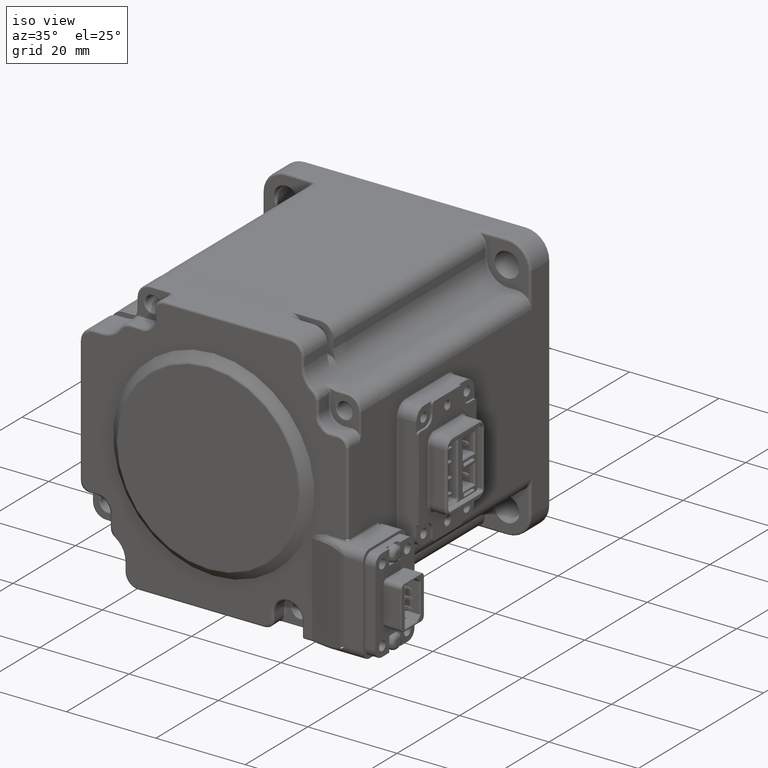
[diagram: clean part render]
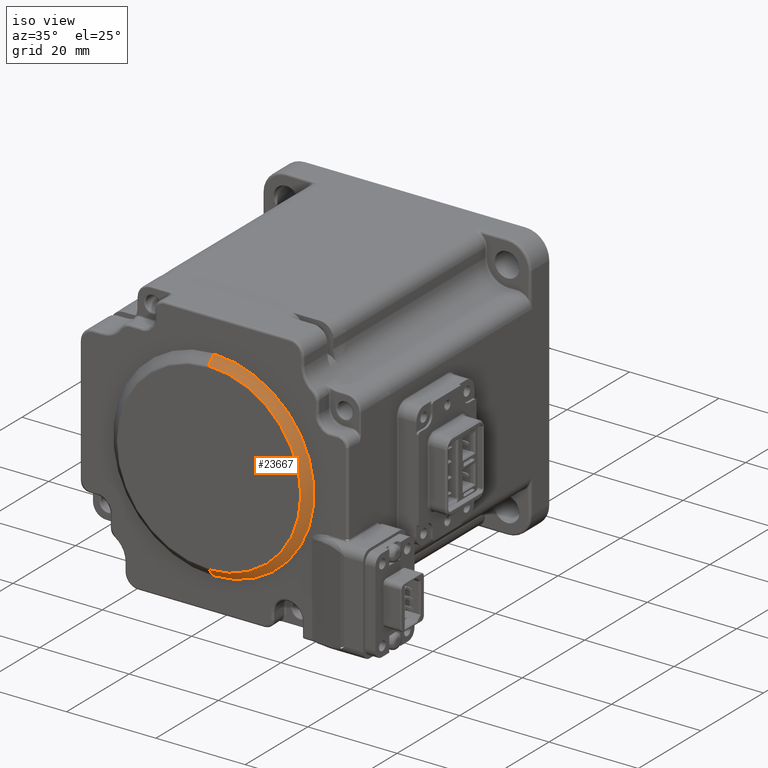
[diagram: same view with one face highlighted and labeled with its STEP entity id]
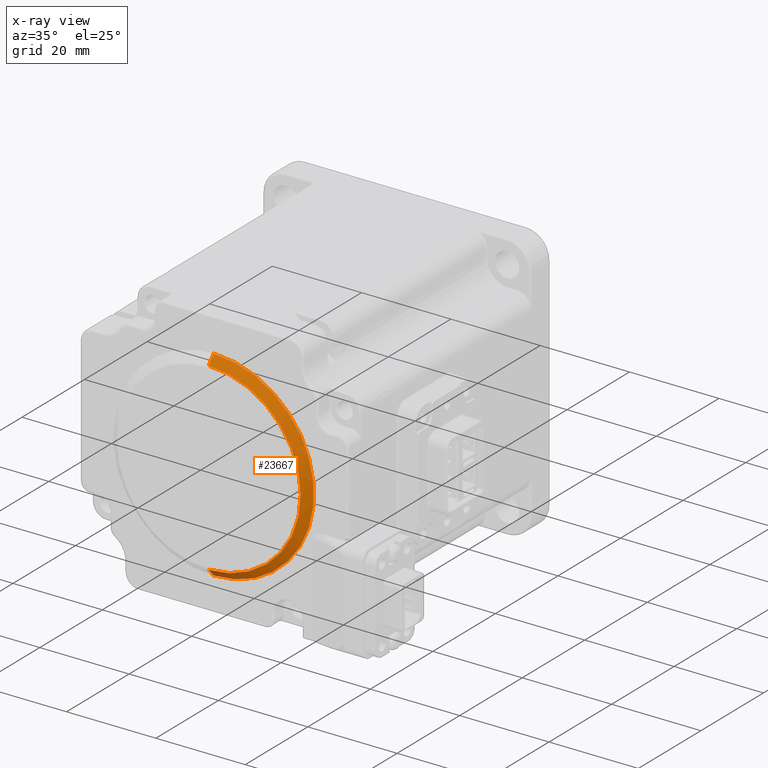
[diagram: x-ray of the same camera — body ghosted, the highlighted face saturated]
A machine part, iso view. The second image highlights one B-rep face of the part: STEP entity #23667.
The next image is the same camera in x-ray: the body ghosted, the highlighted face saturated — about 0% of this face is hidden behind the body in this view.
In plain terms, the highlighted conical surface has half-angle 48.013 deg.
Its self-contained STEP definition (entity closure, byte-faithful):
#362 = CIRCLE ( 'NONE', #3973, 22.44295425472156680 ) ;
#1189 = DIRECTION ( 'NONE',  ( -2.020235042681209704E-16, 0.6689647316224497375, -0.7432941462471662764 ) ) ;
#3474 = EDGE_CURVE ( 'NONE', #9080, #6955, #5148, .T. ) ;
#3973 = AXIS2_PLACEMENT_3D ( 'NONE', #18364, #27009, #15679 ) ;
#5148 = LINE ( 'NONE', #18173, #7152 ) ;
#5172 = DIRECTION ( 'NONE',  ( -6.076376333538275761E-17, 1.000000000000000000, 1.421175234054173029E-18 ) ) ;
#6038 = CONICAL_SURFACE ( 'NONE', #10105, 20.49999999999997513, 0.8379812250083900071 ) ;
#6154 = AXIS2_PLACEMENT_3D ( 'NONE', #15793, #5172, #22869 ) ;
#6623 = VECTOR ( 'NONE', #18679, 1000.000000000000000 ) ;
#6955 = VERTEX_POINT ( 'NONE', #24553 ) ;
#7152 = VECTOR ( 'NONE', #1189, 1000.000000000000000 ) ;
#8199 = CARTESIAN_POINT ( 'NONE',  ( -6.240110625550326949E-15, -54.70000000000000284, -1.634351519163151756E-17 ) ) ;
#9080 = VERTEX_POINT ( 'NONE', #27739 ) ;
#10105 = AXIS2_PLACEMENT_3D ( 'NONE', #8199, #12021, #23071 ) ;
#10639 = VERTEX_POINT ( 'NONE', #15664 ) ;
#11126 = CIRCLE ( 'NONE', #6154, 20.64261436319599596 ) ;
#12021 = DIRECTION ( 'NONE',  ( -6.076376333538275761E-17, 1.000000000000000000, 1.421175234054173222E-18 ) ) ;
#12165 = ORIENTED_EDGE ( 'NONE', *, *, #3474, .T. ) ;
#15664 = CARTESIAN_POINT ( 'NONE',  ( 3.289737658543256827E-15, -54.57164707312358587, 20.64261436319599596 ) ) ;
#15679 = DIRECTION ( 'NONE',  ( 3.395721204224598901E-16, 0.000000000000000000, 1.000000000000000000 ) ) ;
#15793 = CARTESIAN_POINT ( 'NONE',  ( -6.247909832422449276E-15, -54.57164707312358587, -1.616110319073638519E-17 ) ) ;
#16325 = EDGE_LOOP ( 'NONE', ( #19119, #12165, #21388, #17269 ) ) ;
#16564 = LINE ( 'NONE', #20523, #6623 ) ;
#17194 = EDGE_CURVE ( 'NONE', #6955, #23817, #362, .T. ) ;
#17269 = ORIENTED_EDGE ( 'NONE', *, *, #19157, .F. ) ;
#18173 = CARTESIAN_POINT ( 'NONE',  ( -1.069081315595867671E-14, -54.70000000000000284, -20.49999999999997513 ) ) ;
#18364 = CARTESIAN_POINT ( 'NONE',  ( -6.346365716805167568E-15, -52.95134117075056679, -1.385836457069205340E-17 ) ) ;
#18668 = EDGE_CURVE ( 'NONE', #10639, #9080, #11126, .T. ) ;
#18679 = DIRECTION ( 'NONE',  ( 2.117531547067278568E-16, 0.6689647316224497375, 0.7432941462471662764 ) ) ;
#19119 = ORIENTED_EDGE ( 'NONE', *, *, #18668, .T. ) ;
#19157 = EDGE_CURVE ( 'NONE', #10639, #23817, #16564, .T. ) ;
#20523 = CARTESIAN_POINT ( 'NONE',  ( 7.211178431100924665E-16, -54.70000000000000284, 20.49999999999997513 ) ) ;
#21354 = CARTESIAN_POINT ( 'NONE',  ( 1.274635848014905979E-15, -52.95134117075056679, 22.44295425472157746 ) ) ;
#21388 = ORIENTED_EDGE ( 'NONE', *, *, #17194, .T. ) ;
#22869 = DIRECTION ( 'NONE',  ( -3.395721204224598408E-16, 0.000000000000000000, -1.000000000000000000 ) ) ;
#23071 = DIRECTION ( 'NONE',  ( 3.395721204224598901E-16, 0.000000000000000000, 1.000000000000000000 ) ) ;
#23667 = ADVANCED_FACE ( 'NONE', ( #27597 ), #6038, .T. ) ;
#23817 = VERTEX_POINT ( 'NONE', #21354 ) ;
#24553 = CARTESIAN_POINT ( 'NONE',  ( -1.121889807247971610E-14, -52.95134117075056679, -22.44295425472157746 ) ) ;
#27009 = DIRECTION ( 'NONE',  ( 6.076376333538275761E-17, -1.000000000000000000, -1.421175234054173222E-18 ) ) ;
#27597 = FACE_OUTER_BOUND ( 'NONE', #16325, .T. ) ;
#27739 = CARTESIAN_POINT ( 'NONE',  ( -1.325756616279603986E-14, -54.57164707312358587, -20.64261436319599596 ) ) ;